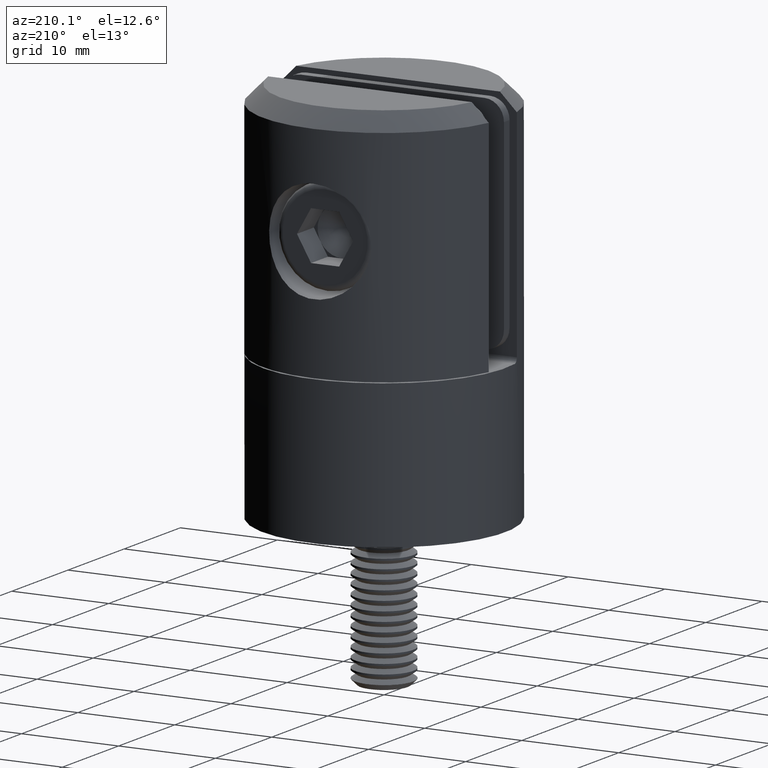
[diagram: clean part render]
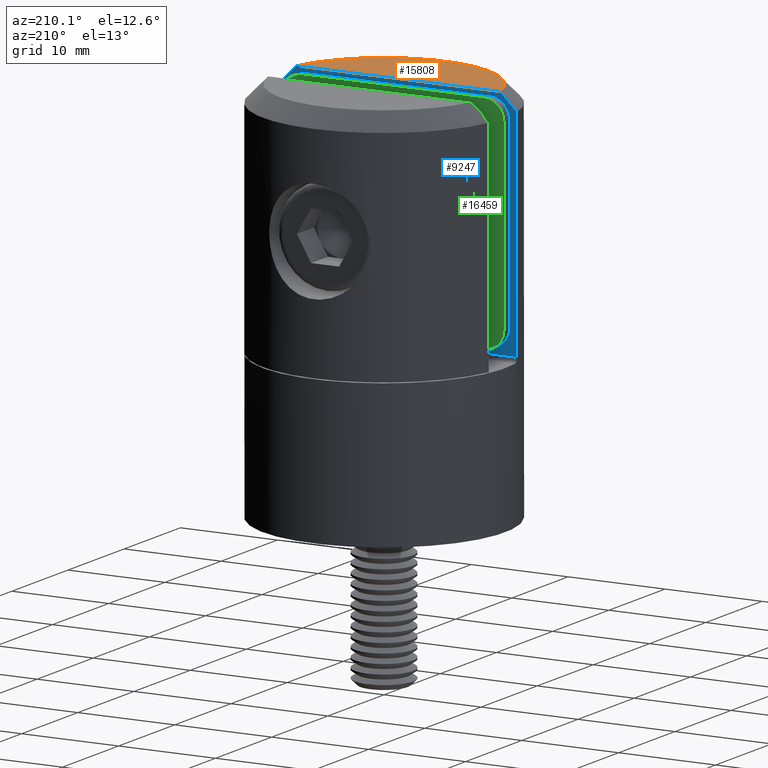
[diagram: same view with three faces highlighted in distinct colors, each labeled with its STEP entity id]
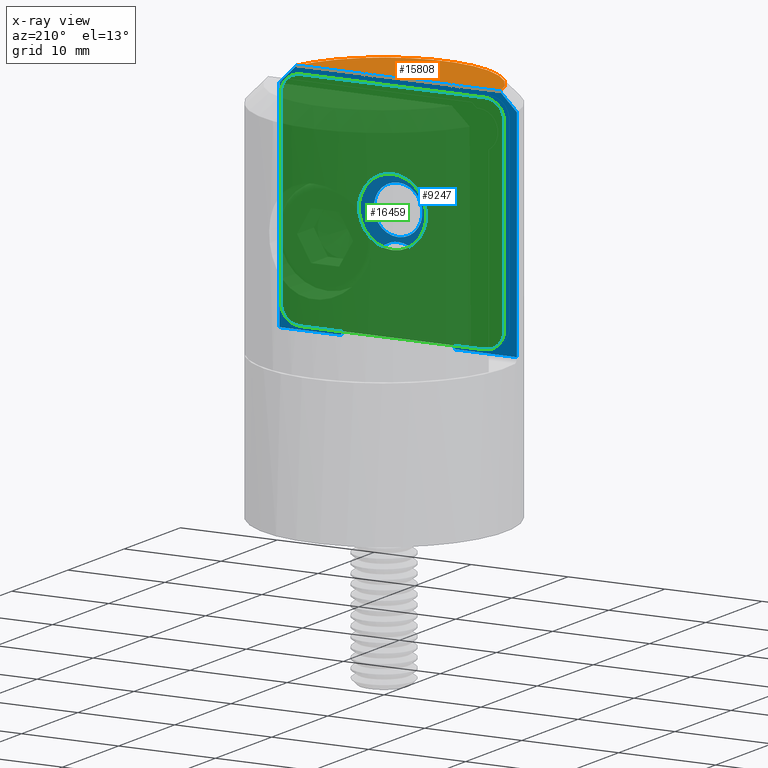
[diagram: x-ray of the same camera — body ghosted, the three highlighted faces saturated]
A machine part, auxiliary view with three faces highlighted in distinct colors.
The next image is the same camera in x-ray (body ghosted, the three faces saturated) — at least one of them is partly hidden behind the body in this view.
Their STEP definitions:

[orange] entity #15808 — the highlighted planar face has unit normal (0, 0, -1).
#686 = DIRECTION ( 'NONE',  ( -1.000000000000000000, 0.000000000000000000, 0.000000000000000000 ) ) ;
#3545 = EDGE_LOOP ( 'NONE', ( #21063, #21235 ) ) ;
#4009 = EDGE_CURVE ( 'NONE', #4196, #14105, #12901, .T. ) ;
#4196 = VERTEX_POINT ( 'NONE', #8384 ) ;
#5472 = LINE ( 'NONE', #7038, #9235 ) ;
#7038 = CARTESIAN_POINT ( 'NONE',  ( 12.24744871391589207, -2.500000000000003997, 39.59999999999999432 ) ) ;
#7717 = DIRECTION ( 'NONE',  ( -1.000000000000000000, 0.000000000000000000, 0.000000000000000000 ) ) ;
#7852 = PLANE ( 'NONE',  #16394 ) ;
#8384 = CARTESIAN_POINT ( 'NONE',  ( -10.50666455160723167, -2.500000000000003997, 39.59999999999999432 ) ) ;
#9235 = VECTOR ( 'NONE', #13725, 1000.000000000000000 ) ;
#9532 = CARTESIAN_POINT ( 'NONE',  ( 0.000000000000000000, -2.174490824415384115E-17, 39.59999999999999432 ) ) ;
#10750 = AXIS2_PLACEMENT_3D ( 'NONE', #9532, #11380, #7717 ) ;
#10928 = CARTESIAN_POINT ( 'NONE',  ( 0.000000000000000000, -1.325909039277673290E-17, 39.59999999999999432 ) ) ;
#10938 = EDGE_CURVE ( 'NONE', #14105, #4196, #5472, .T. ) ;
#11380 = DIRECTION ( 'NONE',  ( 0.000000000000000000, 0.000000000000000000, 1.000000000000000000 ) ) ;
#12901 = CIRCLE ( 'NONE', #10750, 10.80000000000000604 ) ;
#13725 = DIRECTION ( 'NONE',  ( -1.000000000000000000, 0.000000000000000000, 0.000000000000000000 ) ) ;
#14105 = VERTEX_POINT ( 'NONE', #16061 ) ;
#15808 = ADVANCED_FACE ( 'NONE', ( #16503 ), #7852, .F. ) ;
#16061 = CARTESIAN_POINT ( 'NONE',  ( 10.50666455160723878, -2.500000000000003997, 39.59999999999999432 ) ) ;
#16098 = DIRECTION ( 'NONE',  ( -0.000000000000000000, 0.000000000000000000, -1.000000000000000000 ) ) ;
#16394 = AXIS2_PLACEMENT_3D ( 'NONE', #10928, #16098, #686 ) ;
#16503 = FACE_OUTER_BOUND ( 'NONE', #3545, .T. ) ;
#21063 = ORIENTED_EDGE ( 'NONE', *, *, #10938, .T. ) ;
#21235 = ORIENTED_EDGE ( 'NONE', *, *, #4009, .T. ) ;

[blue] entity #9247 — the highlighted planar face has unit normal (0, -1, 0).
#52 = LINE ( 'NONE', #9471, #1360 ) ;
#411 = AXIS2_PLACEMENT_3D ( 'NONE', #9395, #5794, #12767 ) ;
#619 = CARTESIAN_POINT ( 'NONE',  ( 0.000000000000000000, -2.500000000000003997, 27.59999999999999432 ) ) ;
#782 = PLANE ( 'NONE',  #411 ) ;
#840 = ORIENTED_EDGE ( 'NONE', *, *, #6032, .T. ) ;
#915 = ORIENTED_EDGE ( 'NONE', *, *, #17856, .T. ) ;
#1040 = VERTEX_POINT ( 'NONE', #7826 ) ;
#1360 = VECTOR ( 'NONE', #7737, 1000.000000000000000 ) ;
#1390 = CARTESIAN_POINT ( 'NONE',  ( -12.24744871391589207, -2.500000000000003997, 39.59999999999999432 ) ) ;
#1719 = CARTESIAN_POINT ( 'NONE',  ( -11.66812187511647636, -2.500000000000003109, 38.46762205974326321 ) ) ;
#2107 = ORIENTED_EDGE ( 'NONE', *, *, #5279, .T. ) ;
#2273 = CARTESIAN_POINT ( 'NONE',  ( 6.000000000000000000, -2.500000000000003997, 36.79999999999999716 ) ) ;
#2549 = VERTEX_POINT ( 'NONE', #14271 ) ;
#2655 = EDGE_CURVE ( 'NONE', #15729, #2549, #52, .T. ) ;
#2839 = B_SPLINE_CURVE_WITH_KNOTS ( 'NONE', 3,
 ( #18728, #1719, #18583, #20305 ),
 .UNSPECIFIED., .F., .F.,
 ( 4, 4 ),
 ( 1.734723475976807094E-18, 0.002433172722957552270 ),
 .UNSPECIFIED. ) ;
#3550 = EDGE_CURVE ( 'NONE', #10765, #2549, #21722, .T. ) ;
#3625 = EDGE_LOOP ( 'NONE', ( #11605, #10443, #21038, #2107, #22131, #915, #17384, #840 ) ) ;
#3901 = AXIS2_PLACEMENT_3D ( 'NONE', #18873, #8695, #12058 ) ;
#3969 = DIRECTION ( 'NONE',  ( 0.000000000000000000, 1.000000000000000000, 0.000000000000000000 ) ) ;
#3975 = EDGE_CURVE ( 'NONE', #17460, #15729, #19465, .T. ) ;
#3979 = VECTOR ( 'NONE', #17001, 1000.000000000000000 ) ;
#4046 = CARTESIAN_POINT ( 'NONE',  ( 6.000000000000000000, -2.500000000000003997, 34.79999999999999716 ) ) ;
#4196 = VERTEX_POINT ( 'NONE', #8384 ) ;
#4214 = CIRCLE ( 'NONE', #3901, 2.000000000000001776 ) ;
#5043 = CARTESIAN_POINT ( 'NONE',  ( -12.24744871391589207, -2.500000000000003997, 37.89999999999999858 ) ) ;
#5190 = VECTOR ( 'NONE', #17909, 1000.000000000000000 ) ;
#5257 = FACE_BOUND ( 'NONE', #18374, .T. ) ;
#5279 = EDGE_CURVE ( 'NONE', #10765, #4196, #2839, .T. ) ;
#5421 = EDGE_CURVE ( 'NONE', #11485, #11485, #6406, .T. ) ;
#5472 = LINE ( 'NONE', #7038, #9235 ) ;
#5613 = AXIS2_PLACEMENT_3D ( 'NONE', #619, #9308, #21281 ) ;
#5794 = DIRECTION ( 'NONE',  ( 0.000000000000000000, -1.000000000000000000, 0.000000000000000000 ) ) ;
#6032 = EDGE_CURVE ( 'NONE', #19717, #17460, #6129, .T. ) ;
#6129 = LINE ( 'NONE', #16261, #3979 ) ;
#6199 = CARTESIAN_POINT ( 'NONE',  ( 12.24744871391589207, -2.500000000000003997, 37.89999999999999858 ) ) ;
#6214 = CARTESIAN_POINT ( 'NONE',  ( 5.886190353226847805, -2.500000000000003997, 15.50000000000000000 ) ) ;
#6289 = CARTESIAN_POINT ( 'NONE',  ( 2.696452303932710848, -2.500000000000003553, 28.85648753586292514 ) ) ;
#6308 = FACE_OUTER_BOUND ( 'NONE', #3625, .T. ) ;
#6406 = CIRCLE ( 'NONE', #21880, 2.000000000000001776 ) ;
#6569 = DIRECTION ( 'NONE',  ( -0.000000000000000000, -0.000000000000000000, -1.000000000000000000 ) ) ;
#6855 = EDGE_LOOP ( 'NONE', ( #13052 ) ) ;
#7038 = CARTESIAN_POINT ( 'NONE',  ( 12.24744871391589207, -2.500000000000003997, 39.59999999999999432 ) ) ;
#7737 = DIRECTION ( 'NONE',  ( -1.000000000000000000, 0.000000000000000000, 0.000000000000000000 ) ) ;
#7781 = CARTESIAN_POINT ( 'NONE',  ( -5.886190353226848693, -2.500000000000003997, 15.50000000000000000 ) ) ;
#7826 = CARTESIAN_POINT ( 'NONE',  ( 0.000000000000000000, -2.500000000000003997, 30.09999999999999432 ) ) ;
#7947 = B_SPLINE_CURVE_WITH_KNOTS ( 'NONE', 3,
 ( #19676, #22002, #11489, #20260 ),
 .UNSPECIFIED., .F., .F.,
 ( 4, 4 ),
 ( 0.000000000000000000, 0.002433172722957547499 ),
 .UNSPECIFIED. ) ;
#8384 = CARTESIAN_POINT ( 'NONE',  ( -10.50666455160723167, -2.500000000000003997, 39.59999999999999432 ) ) ;
#8695 = DIRECTION ( 'NONE',  ( 0.000000000000000000, 1.000000000000000000, 0.000000000000000000 ) ) ;
#9197 = VERTEX_POINT ( 'NONE', #14803 ) ;
#9235 = VECTOR ( 'NONE', #13725, 1000.000000000000000 ) ;
#9247 = ADVANCED_FACE ( 'NONE', ( #10874, #5257, #6308, #13283 ), #782, .F. ) ;
#9308 = DIRECTION ( 'NONE',  ( -0.000000000000000000, 1.000000000000000000, -0.000000000000000000 ) ) ;
#9395 = CARTESIAN_POINT ( 'NONE',  ( 12.24744871391589207, -2.500000000000003997, 39.59999999999999432 ) ) ;
#9471 = CARTESIAN_POINT ( 'NONE',  ( -12.24744871391588497, -2.500000000000003997, 15.50000000000000000 ) ) ;
#9607 = CARTESIAN_POINT ( 'NONE',  ( 5.886190353226847805, -2.500000000000003997, 15.50000000000000000 ) ) ;
#9668 = CARTESIAN_POINT ( 'NONE',  ( -5.886190353226848693, -2.500000000000003997, 15.50000000000000000 ) ) ;
#10443 = ORIENTED_EDGE ( 'NONE', *, *, #2655, .T. ) ;
#10765 = VERTEX_POINT ( 'NONE', #5043 ) ;
#10874 = FACE_BOUND ( 'NONE', #20215, .T. ) ;
#10938 = EDGE_CURVE ( 'NONE', #14105, #4196, #5472, .T. ) ;
#11481 = EDGE_CURVE ( 'NONE', #19556, #19717, #13221, .T. ) ;
#11485 = VERTEX_POINT ( 'NONE', #2273 ) ;
#11489 = CARTESIAN_POINT ( 'NONE',  ( 11.66812187511647636, -2.500000000000003997, 38.46762205974326321 ) ) ;
#11605 = ORIENTED_EDGE ( 'NONE', *, *, #3975, .T. ) ;
#12058 = DIRECTION ( 'NONE',  ( 0.000000000000000000, 0.000000000000000000, 1.000000000000000000 ) ) ;
#12730 = EDGE_CURVE ( 'NONE', #1040, #1040, #19277, .T. ) ;
#12767 = DIRECTION ( 'NONE',  ( 0.000000000000000000, -0.000000000000000000, -1.000000000000000000 ) ) ;
#13052 = ORIENTED_EDGE ( 'NONE', *, *, #12730, .F. ) ;
#13192 = CARTESIAN_POINT ( 'NONE',  ( -2.696452303932709071, -2.500000000000003553, 28.85648753586291804 ) ) ;
#13221 = LINE ( 'NONE', #17986, #5190 ) ;
#13283 = FACE_BOUND ( 'NONE', #6855, .T. ) ;
#13725 = DIRECTION ( 'NONE',  ( -1.000000000000000000, 0.000000000000000000, 0.000000000000000000 ) ) ;
#14105 = VERTEX_POINT ( 'NONE', #16061 ) ;
#14271 = CARTESIAN_POINT ( 'NONE',  ( -12.24744871391589207, -2.500000000000003997, 15.50000000000000000 ) ) ;
#14322 = DIRECTION ( 'NONE',  ( 0.000000000000000000, 0.000000000000000000, 1.000000000000000000 ) ) ;
#14461 = EDGE_CURVE ( 'NONE', #9197, #9197, #4214, .T. ) ;
#14803 = CARTESIAN_POINT ( 'NONE',  ( -6.000000000000000000, -2.500000000000003997, 36.79999999999999716 ) ) ;
#15729 = VERTEX_POINT ( 'NONE', #7781 ) ;
#16061 = CARTESIAN_POINT ( 'NONE',  ( 10.50666455160723878, -2.500000000000003997, 39.59999999999999432 ) ) ;
#16261 = CARTESIAN_POINT ( 'NONE',  ( 6.002203970564250035, -2.500000000000003997, 15.50000000000000000 ) ) ;
#17001 = DIRECTION ( 'NONE',  ( -1.000000000000000000, 0.000000000000000000, 0.000000000000000000 ) ) ;
#17384 = ORIENTED_EDGE ( 'NONE', *, *, #11481, .T. ) ;
#17460 = VERTEX_POINT ( 'NONE', #9607 ) ;
#17856 = EDGE_CURVE ( 'NONE', #14105, #19556, #7947, .T. ) ;
#17909 = DIRECTION ( 'NONE',  ( -0.000000000000000000, -0.000000000000000000, -1.000000000000000000 ) ) ;
#17986 = CARTESIAN_POINT ( 'NONE',  ( 12.24744871391589207, -2.500000000000003997, 39.59999999999999432 ) ) ;
#18374 = EDGE_LOOP ( 'NONE', ( #19976 ) ) ;
#18480 = VECTOR ( 'NONE', #6569, 1000.000000000000000 ) ;
#18583 = CARTESIAN_POINT ( 'NONE',  ( -11.08800938267508762, -2.500000000000003997, 39.03444489547771212 ) ) ;
#18728 = CARTESIAN_POINT ( 'NONE',  ( -12.24744871391589207, -2.500000000000003997, 37.89999999999999858 ) ) ;
#18873 = CARTESIAN_POINT ( 'NONE',  ( -6.000000000000000000, -2.500000000000003997, 34.79999999999999716 ) ) ;
#19277 = CIRCLE ( 'NONE', #5613, 2.499999999999998668 ) ;
#19465 =( BOUNDED_CURVE ( )  B_SPLINE_CURVE ( 3, ( #6214, #6289, #13192, #9668 ),
 .UNSPECIFIED., .F., .F. ) 
 B_SPLINE_CURVE_WITH_KNOTS ( ( 4, 4 ),
 ( 5.345268941596490464, 7.221101672762682000 ),
 .UNSPECIFIED. ) 
 CURVE ( )  GEOMETRIC_REPRESENTATION_ITEM ( )  RATIONAL_B_SPLINE_CURVE ( ( 1.000000000000000000, 0.7276462662491731681, 0.7276462662491731681, 1.000000000000000000 ) ) 
 REPRESENTATION_ITEM ( '' )  );
#19556 = VERTEX_POINT ( 'NONE', #6199 ) ;
#19676 = CARTESIAN_POINT ( 'NONE',  ( 10.50666455160723878, -2.500000000000003997, 39.59999999999999432 ) ) ;
#19717 = VERTEX_POINT ( 'NONE', #20809 ) ;
#19976 = ORIENTED_EDGE ( 'NONE', *, *, #14461, .F. ) ;
#20215 = EDGE_LOOP ( 'NONE', ( #21679 ) ) ;
#20260 = CARTESIAN_POINT ( 'NONE',  ( 12.24744871391589207, -2.500000000000003997, 37.89999999999999858 ) ) ;
#20305 = CARTESIAN_POINT ( 'NONE',  ( -10.50666455160723167, -2.500000000000003997, 39.59999999999999432 ) ) ;
#20809 = CARTESIAN_POINT ( 'NONE',  ( 12.24744871391589207, -2.500000000000003997, 15.50000000000000000 ) ) ;
#21038 = ORIENTED_EDGE ( 'NONE', *, *, #3550, .F. ) ;
#21281 = DIRECTION ( 'NONE',  ( 0.000000000000000000, 0.000000000000000000, 1.000000000000000000 ) ) ;
#21679 = ORIENTED_EDGE ( 'NONE', *, *, #5421, .F. ) ;
#21722 = LINE ( 'NONE', #1390, #18480 ) ;
#21880 = AXIS2_PLACEMENT_3D ( 'NONE', #4046, #3969, #14322 ) ;
#22002 = CARTESIAN_POINT ( 'NONE',  ( 11.08800938267508585, -2.500000000000003997, 39.03444489547771212 ) ) ;
#22131 = ORIENTED_EDGE ( 'NONE', *, *, #10938, .F. ) ;

[green] entity #16459 — the highlighted planar face has unit normal (0, 1, 0).
#103 = VECTOR ( 'NONE', #9679, 1000.000000000000000 ) ;
#394 = ORIENTED_EDGE ( 'NONE', *, *, #4045, .F. ) ;
#438 = EDGE_CURVE ( 'NONE', #4378, #18038, #1660, .T. ) ;
#465 = ORIENTED_EDGE ( 'NONE', *, *, #11638, .F. ) ;
#493 = CIRCLE ( 'NONE', #1876, 2.000000000000000000 ) ;
#695 = EDGE_CURVE ( 'NONE', #3003, #20869, #493, .T. ) ;
#1086 = AXIS2_PLACEMENT_3D ( 'NONE', #8590, #7001, #1988 ) ;
#1660 = LINE ( 'NONE', #21349, #15362 ) ;
#1739 = CIRCLE ( 'NONE', #18314, 3.499999999999999556 ) ;
#1876 = AXIS2_PLACEMENT_3D ( 'NONE', #3272, #11724, #5017 ) ;
#1942 = ORIENTED_EDGE ( 'NONE', *, *, #5480, .T. ) ;
#1988 = DIRECTION ( 'NONE',  ( 0.000000000000000000, 0.000000000000000000, -1.000000000000000000 ) ) ;
#2164 = DIRECTION ( 'NONE',  ( 0.000000000000000000, -1.000000000000000000, -0.000000000000000000 ) ) ;
#2353 = CARTESIAN_POINT ( 'NONE',  ( 9.499999999999996447, 0.000000000000000000, -9.500000000000000000 ) ) ;
#2709 = CARTESIAN_POINT ( 'NONE',  ( 9.499999999999994671, 0.000000000000000000, -11.50000000000000000 ) ) ;
#2710 = DIRECTION ( 'NONE',  ( 1.508455196501572415E-16, -0.000000000000000000, 1.000000000000000000 ) ) ;
#2831 = LINE ( 'NONE', #12862, #5553 ) ;
#3001 = LINE ( 'NONE', #8320, #103 ) ;
#3003 = VERTEX_POINT ( 'NONE', #17884 ) ;
#3272 = CARTESIAN_POINT ( 'NONE',  ( -9.500000000000000000, 0.000000000000000000, 9.499999999999996447 ) ) ;
#4044 = DIRECTION ( 'NONE',  ( 0.000000000000000000, 0.000000000000000000, -1.000000000000000000 ) ) ;
#4045 = EDGE_CURVE ( 'NONE', #3003, #17608, #21433, .T. ) ;
#4166 = DIRECTION ( 'NONE',  ( 0.000000000000000000, -1.000000000000000000, -0.000000000000000000 ) ) ;
#4188 = ORIENTED_EDGE ( 'NONE', *, *, #8185, .F. ) ;
#4369 = DIRECTION ( 'NONE',  ( 0.000000000000000000, 0.000000000000000000, 1.000000000000000000 ) ) ;
#4378 = VERTEX_POINT ( 'NONE', #8767 ) ;
#4529 = VERTEX_POINT ( 'NONE', #12559 ) ;
#5017 = DIRECTION ( 'NONE',  ( 0.000000000000000000, 0.000000000000000000, -1.000000000000000000 ) ) ;
#5309 = CIRCLE ( 'NONE', #20389, 2.000000000000000000 ) ;
#5480 = EDGE_CURVE ( 'NONE', #4378, #17608, #6678, .T. ) ;
#5528 = AXIS2_PLACEMENT_3D ( 'NONE', #12597, #14616, #4044 ) ;
#5553 = VECTOR ( 'NONE', #2710, 1000.000000000000000 ) ;
#6038 = FACE_OUTER_BOUND ( 'NONE', #16718, .T. ) ;
#6678 = CIRCLE ( 'NONE', #15284, 2.000000000000000000 ) ;
#7001 = DIRECTION ( 'NONE',  ( 0.000000000000000000, -1.000000000000000000, -0.000000000000000000 ) ) ;
#7446 = EDGE_CURVE ( 'NONE', #9983, #12887, #15469, .T. ) ;
#7475 = PLANE ( 'NONE',  #5528 ) ;
#7730 = DIRECTION ( 'NONE',  ( 0.000000000000000000, 1.000000000000000000, 0.000000000000000000 ) ) ;
#8185 = EDGE_CURVE ( 'NONE', #9983, #20869, #2831, .T. ) ;
#8320 = CARTESIAN_POINT ( 'NONE',  ( -11.50000000000000355, 0.000000000000000000, -11.49999999999998934 ) ) ;
#8590 = CARTESIAN_POINT ( 'NONE',  ( -9.500000000000003553, 0.000000000000000000, -9.499999999999987566 ) ) ;
#8767 = CARTESIAN_POINT ( 'NONE',  ( 11.50000000000000000, 0.000000000000000000, 9.499999999999998224 ) ) ;
#9264 = EDGE_CURVE ( 'NONE', #4529, #4529, #1739, .T. ) ;
#9679 = DIRECTION ( 'NONE',  ( -1.000000000000000000, -0.000000000000000000, 5.279593187755499510E-16 ) ) ;
#9961 = ORIENTED_EDGE ( 'NONE', *, *, #14928, .T. ) ;
#9983 = VERTEX_POINT ( 'NONE', #21710 ) ;
#11638 = EDGE_CURVE ( 'NONE', #20782, #12887, #3001, .T. ) ;
#11724 = DIRECTION ( 'NONE',  ( 0.000000000000000000, -1.000000000000000000, -0.000000000000000000 ) ) ;
#11971 = CARTESIAN_POINT ( 'NONE',  ( -9.500000000000005329, 0.000000000000000000, -11.49999999999999112 ) ) ;
#12151 = ORIENTED_EDGE ( 'NONE', *, *, #695, .T. ) ;
#12559 = CARTESIAN_POINT ( 'NONE',  ( 0.000000000000000000, 0.000000000000000000, 3.499999999999999556 ) ) ;
#12597 = CARTESIAN_POINT ( 'NONE',  ( 0.000000000000000000, 0.000000000000000000, 0.000000000000000000 ) ) ;
#12671 = CARTESIAN_POINT ( 'NONE',  ( 9.500000000000000000, 0.000000000000000000, 9.499999999999998224 ) ) ;
#12862 = CARTESIAN_POINT ( 'NONE',  ( -11.50000000000000000, 0.000000000000000000, 11.49999999999999645 ) ) ;
#12887 = VERTEX_POINT ( 'NONE', #11971 ) ;
#14136 = CARTESIAN_POINT ( 'NONE',  ( 11.49999999999999645, 0.000000000000000000, -9.500000000000000000 ) ) ;
#14616 = DIRECTION ( 'NONE',  ( 0.000000000000000000, -1.000000000000000000, 0.000000000000000000 ) ) ;
#14687 = ORIENTED_EDGE ( 'NONE', *, *, #9264, .T. ) ;
#14928 = EDGE_CURVE ( 'NONE', #20782, #18038, #5309, .T. ) ;
#15131 = EDGE_LOOP ( 'NONE', ( #14687 ) ) ;
#15284 = AXIS2_PLACEMENT_3D ( 'NONE', #12671, #2164, #19319 ) ;
#15362 = VECTOR ( 'NONE', #21647, 1000.000000000000000 ) ;
#15469 = CIRCLE ( 'NONE', #1086, 2.000000000000000000 ) ;
#16459 = ADVANCED_FACE ( 'NONE', ( #6038, #21336 ), #7475, .T. ) ;
#16718 = EDGE_LOOP ( 'NONE', ( #4188, #17518, #465, #9961, #16793, #1942, #394, #12151 ) ) ;
#16793 = ORIENTED_EDGE ( 'NONE', *, *, #438, .F. ) ;
#17518 = ORIENTED_EDGE ( 'NONE', *, *, #7446, .T. ) ;
#17608 = VERTEX_POINT ( 'NONE', #22054 ) ;
#17884 = CARTESIAN_POINT ( 'NONE',  ( -9.500000000000000000, 0.000000000000000000, 11.49999999999999645 ) ) ;
#18038 = VERTEX_POINT ( 'NONE', #14136 ) ;
#18045 = CARTESIAN_POINT ( 'NONE',  ( -11.50000000000000000, 0.000000000000000000, 11.49999999999999645 ) ) ;
#18314 = AXIS2_PLACEMENT_3D ( 'NONE', #21439, #7730, #4369 ) ;
#19319 = DIRECTION ( 'NONE',  ( 0.000000000000000000, 0.000000000000000000, -1.000000000000000000 ) ) ;
#19592 = DIRECTION ( 'NONE',  ( 0.000000000000000000, 0.000000000000000000, -1.000000000000000000 ) ) ;
#19851 = VECTOR ( 'NONE', #19852, 1000.000000000000000 ) ;
#19852 = DIRECTION ( 'NONE',  ( 1.000000000000000000, 0.000000000000000000, 7.542275982507857147E-17 ) ) ;
#20389 = AXIS2_PLACEMENT_3D ( 'NONE', #2353, #4166, #19592 ) ;
#20782 = VERTEX_POINT ( 'NONE', #2709 ) ;
#20869 = VERTEX_POINT ( 'NONE', #21615 ) ;
#21336 = FACE_BOUND ( 'NONE', #15131, .T. ) ;
#21349 = CARTESIAN_POINT ( 'NONE',  ( 11.50000000000000000, 0.000000000000000000, 11.49999999999999822 ) ) ;
#21433 = LINE ( 'NONE', #18045, #19851 ) ;
#21439 = CARTESIAN_POINT ( 'NONE',  ( 0.000000000000000000, 0.000000000000000000, 0.000000000000000000 ) ) ;
#21615 = CARTESIAN_POINT ( 'NONE',  ( -11.50000000000000000, 0.000000000000000000, 9.499999999999996447 ) ) ;
#21647 = DIRECTION ( 'NONE',  ( -1.508455196501571429E-16, 0.000000000000000000, -1.000000000000000000 ) ) ;
#21710 = CARTESIAN_POINT ( 'NONE',  ( -11.50000000000000355, 0.000000000000000000, -9.499999999999987566 ) ) ;
#22054 = CARTESIAN_POINT ( 'NONE',  ( 9.499999999999998224, 0.000000000000000000, 11.49999999999999822 ) ) ;